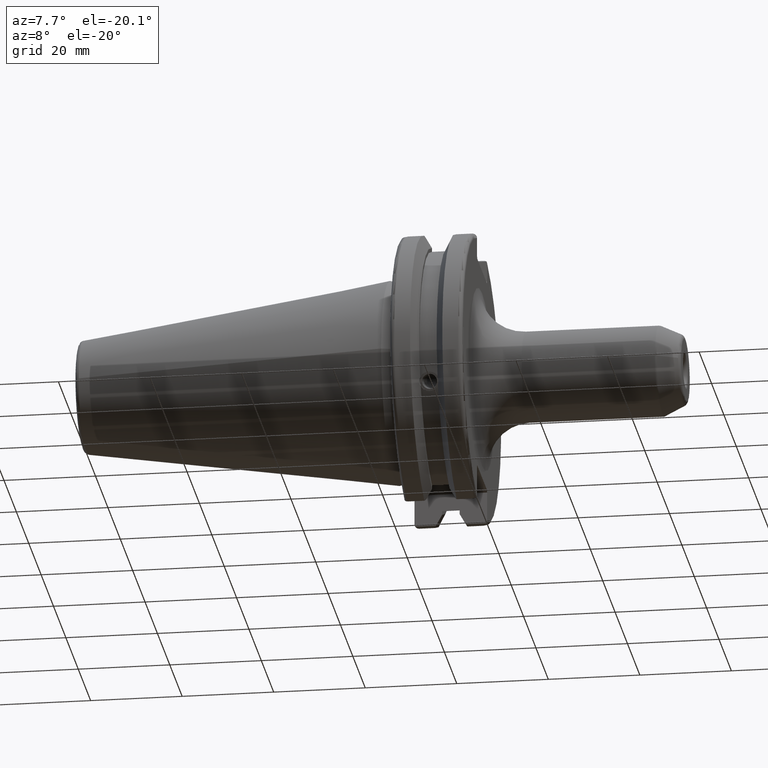
[diagram: clean part render]
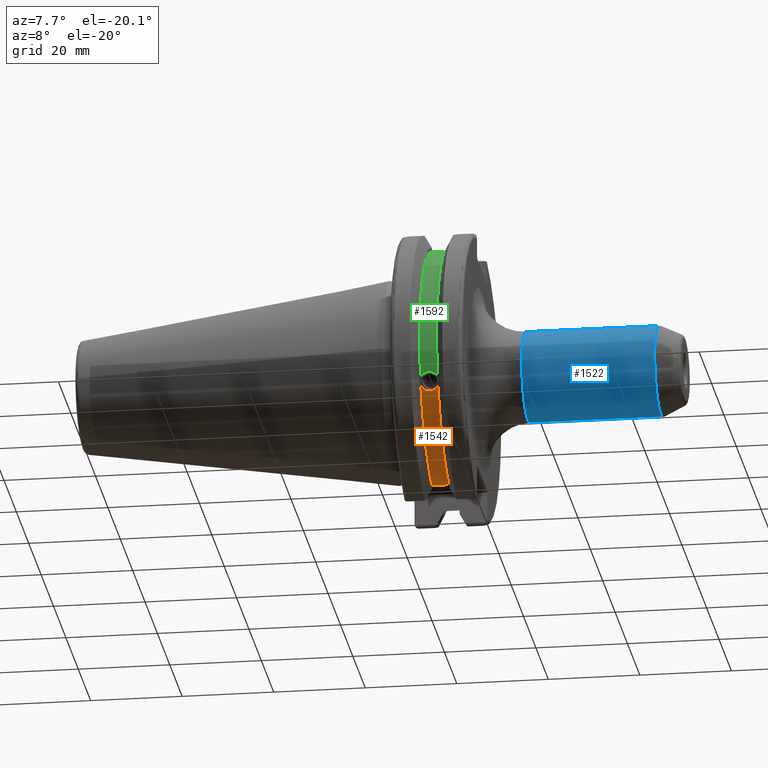
[diagram: same view with three faces highlighted in distinct colors, each labeled with its STEP entity id]
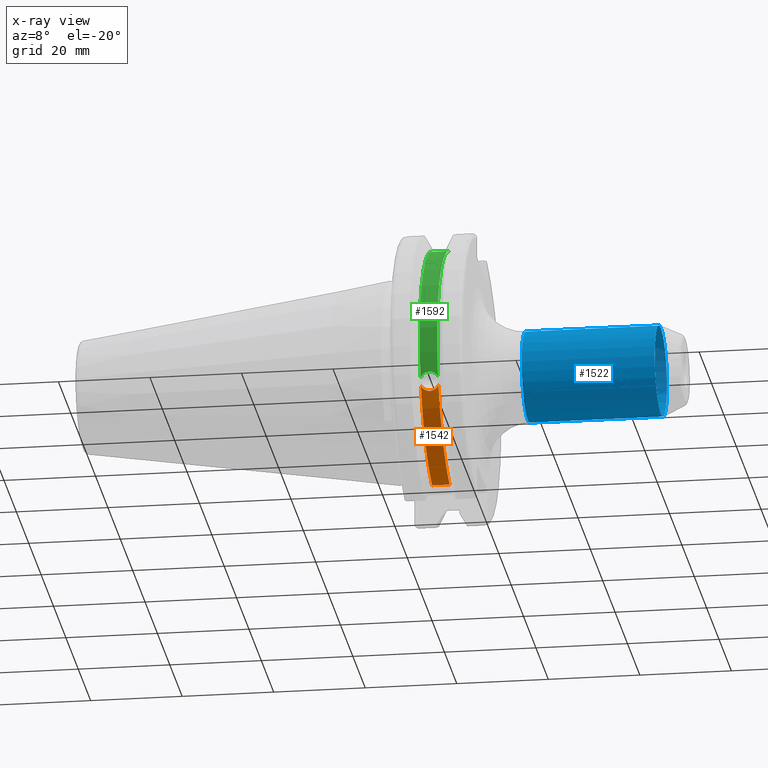
[diagram: x-ray of the same camera — body ghosted, the three highlighted faces saturated]
A machine part, auxiliary view with three faces highlighted in distinct colors.
The next image is the same camera in x-ray (body ghosted, the three faces saturated) — at least one of them is partly hidden behind the body in this view.
Their STEP definitions:

[orange] entity #1542 — the highlighted cylindrical surface (partial cylindrical patch) has radius 28.15 mm, axis along (1, 0, 0).
#74=B_SPLINE_CURVE_WITH_KNOTS('',3,(#2594,#2595,#2596,#2597,#2598,#2599,
#2600,#2601,#2602,#2603,#2604,#2605,#2606,#2607,#2608),.UNSPECIFIED.,.F.,
 .F.,(4,2,2,3,2,2,4),(-0.231446873660085,-0.158271583089134,-0.0791357915445672,
0.,0.0791357915445671,0.158271583089134,0.231446873660466),
 .UNSPECIFIED.);
#128=LINE('',#2666,#222);
#222=VECTOR('',#1985,10.);
#296=CYLINDRICAL_SURFACE('',#1696,28.15);
#390=FACE_OUTER_BOUND('',#485,.T.);
#485=EDGE_LOOP('',(#1182,#1183,#1184,#1185));
#588=CIRCLE('',#1695,28.15);
#589=CIRCLE('',#1697,28.15);
#685=VERTEX_POINT('',#2591);
#686=VERTEX_POINT('',#2593);
#699=VERTEX_POINT('',#2660);
#700=VERTEX_POINT('',#2664);
#861=EDGE_CURVE('',#686,#685,#74,.T.);
#879=EDGE_CURVE('',#686,#699,#588,.T.);
#881=EDGE_CURVE('',#685,#700,#589,.T.);
#882=EDGE_CURVE('',#700,#699,#128,.T.);
#1182=ORIENTED_EDGE('',*,*,#861,.T.);
#1183=ORIENTED_EDGE('',*,*,#881,.T.);
#1184=ORIENTED_EDGE('',*,*,#882,.T.);
#1185=ORIENTED_EDGE('',*,*,#879,.F.);
#1542=ADVANCED_FACE('',(#390),#296,.T.);
#1695=AXIS2_PLACEMENT_3D('',#2661,#1978,#1979);
#1696=AXIS2_PLACEMENT_3D('',#2663,#1981,#1982);
#1697=AXIS2_PLACEMENT_3D('',#2665,#1983,#1984);
#1978=DIRECTION('center_axis',(1.,0.,0.));
#1979=DIRECTION('ref_axis',(0.,0.,-1.));
#1981=DIRECTION('center_axis',(1.,0.,0.));
#1982=DIRECTION('ref_axis',(0.,1.,0.));
#1983=DIRECTION('center_axis',(1.,0.,0.));
#1984=DIRECTION('ref_axis',(0.,0.,-1.));
#1985=DIRECTION('',(1.,0.,0.));
#2591=CARTESIAN_POINT('',(9.2191,-26.1451788594704,-10.4332220529567));
#2593=CARTESIAN_POINT('',(13.0491,-26.1451788594704,-10.4332220529567));
#2594=CARTESIAN_POINT('Ctrl Pts',(13.0491,-26.1451788594704,-10.4332220529567));
#2595=CARTESIAN_POINT('Ctrl Pts',(12.9428694290343,-26.0576536126147,-10.6525563316815));
#2596=CARTESIAN_POINT('Ctrl Pts',(12.791379862294,-25.9751489313128,-10.8509873904882));
#2597=CARTESIAN_POINT('Ctrl Pts',(12.4326293734259,-25.8346412777187,-11.1816210830117));
#2598=CARTESIAN_POINT('Ctrl Pts',(12.1965549887012,-25.7695111693635,-11.3298867884858));
#2599=CARTESIAN_POINT('Ctrl Pts',(11.6791874573612,-25.6822868299377,-11.5262389251846));
#2600=CARTESIAN_POINT('Ctrl Pts',(11.3978859718152,-25.6603958057616,-11.5743935949859));
#2601=CARTESIAN_POINT('Ctrl Pts',(11.1341,-25.6603958057616,-11.5743935949859));
#2602=CARTESIAN_POINT('Ctrl Pts',(10.8703140281848,-25.6603958057616,-11.5743935949859));
#2603=CARTESIAN_POINT('Ctrl Pts',(10.5890125426388,-25.6822868299377,-11.5262389251846));
#2604=CARTESIAN_POINT('Ctrl Pts',(10.0716450112988,-25.7695111693635,-11.3298867884858));
#2605=CARTESIAN_POINT('Ctrl Pts',(9.83557062657411,-25.8346412777187,-11.1816210830117));
#2606=CARTESIAN_POINT('Ctrl Pts',(9.4768201377051,-25.9751489313131,-10.8509873904873));
#2607=CARTESIAN_POINT('Ctrl Pts',(9.32533057097183,-26.0576536126096,-10.6525563316942));
#2608=CARTESIAN_POINT('Ctrl Pts',(9.2191,-26.1451788594704,-10.4332220529567));
#2660=CARTESIAN_POINT('',(13.0491,-8.19,-26.932255754021));
#2661=CARTESIAN_POINT('Origin',(13.0491,0.,0.));
#2663=CARTESIAN_POINT('Origin',(11.1341,0.,0.));
#2664=CARTESIAN_POINT('',(9.2191,-8.19,-26.932255754021));
#2665=CARTESIAN_POINT('Origin',(9.2191,0.,0.));
#2666=CARTESIAN_POINT('',(11.1341,-8.19,-26.932255754021));

[blue] entity #1522 — the highlighted cylindrical surface (bore or boss wall) has radius 9.906 mm, axis along (1, 0, 0).
#65=B_SPLINE_CURVE_WITH_KNOTS('',3,(#2358,#2359,#2360,#2361,#2362,#2363,
#2364,#2365,#2366,#2367,#2368,#2369,#2370,#2371,#2372,#2373,#2374,#2375),
 .UNSPECIFIED.,.F.,.F.,(4,2,2,2,2,2,2,2,4),(0.529072367438421,0.663907434953961,
0.798742502469502,0.928443618673172,1.05814473487684,1.18784585108051,1.31754696728418,
1.45238203479972,1.58721710231526),.UNSPECIFIED.);
#66=B_SPLINE_CURVE_WITH_KNOTS('',3,(#2376,#2377,#2378,#2379,#2380,#2381,
#2382,#2383,#2384,#2385,#2386,#2387,#2388,#2389,#2390,#2391,#2392,#2393,
#2394),.UNSPECIFIED.,.F.,.F.,(4,2,2,2,3,2,2,2,4),(1.58721710231526,1.7220521698308,
1.85688723734634,1.98658835355001,2.11628946975368,2.24599058595736,2.37569170216103,
2.51052676967657,2.64536183719211),.UNSPECIFIED.);
#99=LINE('',#2352,#193);
#193=VECTOR('',#1856,9.906);
#286=CYLINDRICAL_SURFACE('',#1647,9.906);
#315=FACE_BOUND('',#460,.T.);
#370=FACE_OUTER_BOUND('',#459,.T.);
#459=EDGE_LOOP('',(#1060,#1061,#1062,#1063,#1064,#1065));
#460=EDGE_LOOP('',(#1066,#1067));
#567=CIRCLE('',#1645,9.906);
#568=CIRCLE('',#1646,9.906);
#569=CIRCLE('',#1648,9.906);
#570=CIRCLE('',#1649,9.906);
#643=VERTEX_POINT('',#2345);
#644=VERTEX_POINT('',#2347);
#645=VERTEX_POINT('',#2351);
#646=VERTEX_POINT('',#2353);
#647=VERTEX_POINT('',#2356);
#648=VERTEX_POINT('',#2357);
#806=EDGE_CURVE('',#643,#644,#567,.T.);
#807=EDGE_CURVE('',#644,#643,#568,.T.);
#808=EDGE_CURVE('',#644,#645,#99,.T.);
#809=EDGE_CURVE('',#646,#645,#569,.T.);
#810=EDGE_CURVE('',#645,#646,#570,.T.);
#811=EDGE_CURVE('',#647,#648,#65,.T.);
#812=EDGE_CURVE('',#648,#647,#66,.T.);
#1060=ORIENTED_EDGE('',*,*,#807,.F.);
#1061=ORIENTED_EDGE('',*,*,#808,.T.);
#1062=ORIENTED_EDGE('',*,*,#809,.F.);
#1063=ORIENTED_EDGE('',*,*,#810,.F.);
#1064=ORIENTED_EDGE('',*,*,#808,.F.);
#1065=ORIENTED_EDGE('',*,*,#806,.F.);
#1066=ORIENTED_EDGE('',*,*,#811,.T.);
#1067=ORIENTED_EDGE('',*,*,#812,.T.);
#1522=ADVANCED_FACE('',(#370,#315),#286,.T.);
#1645=AXIS2_PLACEMENT_3D('',#2348,#1850,#1851);
#1646=AXIS2_PLACEMENT_3D('',#2349,#1852,#1853);
#1647=AXIS2_PLACEMENT_3D('',#2350,#1854,#1855);
#1648=AXIS2_PLACEMENT_3D('',#2354,#1857,#1858);
#1649=AXIS2_PLACEMENT_3D('',#2355,#1859,#1860);
#1850=DIRECTION('center_axis',(1.,0.,0.));
#1851=DIRECTION('ref_axis',(0.,-1.,1.83697019872103E-16));
#1852=DIRECTION('center_axis',(1.,0.,0.));
#1853=DIRECTION('ref_axis',(0.,-1.,1.83697019872103E-16));
#1854=DIRECTION('center_axis',(1.,0.,0.));
#1855=DIRECTION('ref_axis',(0.,1.,0.));
#1856=DIRECTION('',(-1.,0.,0.));
#1857=DIRECTION('center_axis',(-1.,0.,0.));
#1858=DIRECTION('ref_axis',(0.,-1.,-1.22464679914735E-16));
#1859=DIRECTION('center_axis',(-1.,0.,0.));
#1860=DIRECTION('ref_axis',(0.,-1.,-1.22464679914735E-16));
#2345=CARTESIAN_POINT('',(58.118621686611,-1.21313511923537E-15,9.906));
#2347=CARTESIAN_POINT('',(58.118621686611,-9.906,-1.21313511923537E-15));
#2348=CARTESIAN_POINT('Origin',(58.118621686611,0.,0.));
#2349=CARTESIAN_POINT('Origin',(58.118621686611,0.,0.));
#2350=CARTESIAN_POINT('Origin',(38.695158174627,0.,0.));
#2351=CARTESIAN_POINT('',(29.05,-9.906,-1.21313511923537E-15));
#2352=CARTESIAN_POINT('',(38.695158174627,-9.906,-1.21313511923537E-15));
#2353=CARTESIAN_POINT('',(29.05,-1.21313511923537E-15,-9.906));
#2354=CARTESIAN_POINT('Origin',(29.05,0.,0.));
#2355=CARTESIAN_POINT('Origin',(29.05,0.,0.));
#2356=CARTESIAN_POINT('',(52.05,9.906,0.));
#2357=CARTESIAN_POINT('',(44.55,9.906,0.));
#2358=CARTESIAN_POINT('Ctrl Pts',(52.05,9.906,-1.38777878078145E-15));
#2359=CARTESIAN_POINT('Ctrl Pts',(52.05,9.906,0.4494502250518));
#2360=CARTESIAN_POINT('Ctrl Pts',(51.9320448233003,9.87248944388633,0.914293160023826));
#2361=CARTESIAN_POINT('Ctrl Pts',(51.491792873787,9.76103690400476,1.73900425012002));
#2362=CARTESIAN_POINT('Ctrl Pts',(51.1703277651678,9.68503796084408,2.09957744918128));
#2363=CARTESIAN_POINT('Ctrl Pts',(50.4832179384077,9.55264449134434,2.63614138826279));
#2364=CARTESIAN_POINT('Ctrl Pts',(50.0730915749197,9.48647771909782,2.85632065330157));
#2365=CARTESIAN_POINT('Ctrl Pts',(49.1977221206165,9.39461398580354,3.14532245764261));
#2366=CARTESIAN_POINT('Ctrl Pts',(48.7323370540122,9.37008502803323,3.21408502803323));
#2367=CARTESIAN_POINT('Ctrl Pts',(47.8676629459878,9.37008502803323,3.21408502803323));
#2368=CARTESIAN_POINT('Ctrl Pts',(47.4022778793835,9.39461398580354,3.14532245764261));
#2369=CARTESIAN_POINT('Ctrl Pts',(46.5269084250803,9.48647771909782,2.85632065330157));
#2370=CARTESIAN_POINT('Ctrl Pts',(46.1167820615923,9.55264449134434,2.63614138826279));
#2371=CARTESIAN_POINT('Ctrl Pts',(45.4296722348322,9.68503796084408,2.09957744918128));
#2372=CARTESIAN_POINT('Ctrl Pts',(45.108207126213,9.76103690400476,1.73900425012002));
#2373=CARTESIAN_POINT('Ctrl Pts',(44.6679551766997,9.87248944388633,0.914293160023826));
#2374=CARTESIAN_POINT('Ctrl Pts',(44.55,9.906,0.449450225051803));
#2375=CARTESIAN_POINT('Ctrl Pts',(44.55,9.906,1.59594559789866E-15));
#2376=CARTESIAN_POINT('Ctrl Pts',(44.55,9.906,6.24500451351651E-16));
#2377=CARTESIAN_POINT('Ctrl Pts',(44.55,9.906,-0.4494502250518));
#2378=CARTESIAN_POINT('Ctrl Pts',(44.6679551766997,9.87248944388633,-0.914293160023825));
#2379=CARTESIAN_POINT('Ctrl Pts',(45.108207126213,9.76103690400476,-1.73900425012002));
#2380=CARTESIAN_POINT('Ctrl Pts',(45.4296722348322,9.68503796084408,-2.09957744918128));
#2381=CARTESIAN_POINT('Ctrl Pts',(46.1167820615923,9.55264449134434,-2.63614138826279));
#2382=CARTESIAN_POINT('Ctrl Pts',(46.5269084250803,9.48647771909782,-2.85632065330157));
#2383=CARTESIAN_POINT('Ctrl Pts',(47.4022778793835,9.39461398580354,-3.14532245764261));
#2384=CARTESIAN_POINT('Ctrl Pts',(47.8676629459878,9.37008502803323,-3.21408502803323));
#2385=CARTESIAN_POINT('Ctrl Pts',(48.3,9.37008502803323,-3.21408502803323));
#2386=CARTESIAN_POINT('Ctrl Pts',(48.7323370540122,9.37008502803323,-3.21408502803323));
#2387=CARTESIAN_POINT('Ctrl Pts',(49.1977221206165,9.39461398580354,-3.14532245764261));
#2388=CARTESIAN_POINT('Ctrl Pts',(50.0730915749197,9.48647771909782,-2.85632065330157));
#2389=CARTESIAN_POINT('Ctrl Pts',(50.4832179384077,9.55264449134434,-2.63614138826279));
#2390=CARTESIAN_POINT('Ctrl Pts',(51.1703277651678,9.68503796084408,-2.09957744918128));
#2391=CARTESIAN_POINT('Ctrl Pts',(51.491792873787,9.76103690400476,-1.73900425012002));
#2392=CARTESIAN_POINT('Ctrl Pts',(51.9320448233003,9.87248944388633,-0.914293160023826));
#2393=CARTESIAN_POINT('Ctrl Pts',(52.05,9.906,-0.449450225051801));
#2394=CARTESIAN_POINT('Ctrl Pts',(52.05,9.906,0.));

[green] entity #1592 — the highlighted cylindrical surface (partial cylindrical patch) has radius 28.15 mm, axis along (1, 0, 0).
#72=B_SPLINE_CURVE_WITH_KNOTS('',3,(#2560,#2561,#2562,#2563,#2564,#2565,
#2566,#2567,#2568,#2569,#2570,#2571,#2572,#2573),.UNSPECIFIED.,.F.,.F.,
(4,2,2,2,2,2,4),(0.401639126382404,0.474814416953736,0.553950208498303,
0.63308600004287,0.712221791587437,0.791357583132004,0.864532873703336),
 .UNSPECIFIED.);
#162=LINE('',#2964,#256);
#256=VECTOR('',#2123,10.);
#311=CYLINDRICAL_SURFACE('',#1791,28.15);
#440=FACE_OUTER_BOUND('',#541,.T.);
#541=EDGE_LOOP('',(#1454,#1455,#1456,#1457));
#625=CIRCLE('',#1792,28.15);
#626=CIRCLE('',#1793,28.15);
#681=VERTEX_POINT('',#2557);
#682=VERTEX_POINT('',#2559);
#763=VERTEX_POINT('',#2961);
#764=VERTEX_POINT('',#2963);
#857=EDGE_CURVE('',#682,#681,#72,.T.);
#968=EDGE_CURVE('',#764,#763,#162,.T.);
#1019=EDGE_CURVE('',#764,#681,#625,.T.);
#1020=EDGE_CURVE('',#763,#682,#626,.T.);
#1454=ORIENTED_EDGE('',*,*,#857,.T.);
#1455=ORIENTED_EDGE('',*,*,#1019,.F.);
#1456=ORIENTED_EDGE('',*,*,#968,.T.);
#1457=ORIENTED_EDGE('',*,*,#1020,.T.);
#1592=ADVANCED_FACE('',(#440),#311,.T.);
#1791=AXIS2_PLACEMENT_3D('',#3112,#2231,#2232);
#1792=AXIS2_PLACEMENT_3D('',#3113,#2233,#2234);
#1793=AXIS2_PLACEMENT_3D('',#3114,#2235,#2236);
#2123=DIRECTION('',(-1.,0.,0.));
#2231=DIRECTION('center_axis',(1.,0.,0.));
#2232=DIRECTION('ref_axis',(0.,-0.887654187951484,0.46051063246378));
#2233=DIRECTION('center_axis',(1.,0.,0.));
#2234=DIRECTION('ref_axis',(0.,0.,-1.));
#2235=DIRECTION('center_axis',(1.,0.,0.));
#2236=DIRECTION('ref_axis',(0.,0.,-1.));
#2557=CARTESIAN_POINT('',(13.0491,-26.734714844398,-8.81348524641211));
#2559=CARTESIAN_POINT('',(9.2191,-26.734714844398,-8.81348524641212));
#2560=CARTESIAN_POINT('Ctrl Pts',(9.2191,-26.734714844398,-8.81348524641212));
#2561=CARTESIAN_POINT('Ctrl Pts',(9.32533057097183,-26.8086519721597,-8.58920529678291));
#2562=CARTESIAN_POINT('Ctrl Pts',(9.47682013770509,-26.8729987454904,-8.38416529997369));
#2563=CARTESIAN_POINT('Ctrl Pts',(9.83557062657411,-26.9778908791383,-8.04056861831091));
#2564=CARTESIAN_POINT('Ctrl Pts',(10.0716450112988,-27.0233016799732,-7.88512567185902));
#2565=CARTESIAN_POINT('Ctrl Pts',(10.5890125426388,-27.0826966800569,-7.6786444840004));
#2566=CARTESIAN_POINT('Ctrl Pts',(10.8703140281848,-27.0968804077294,-7.62768458768512));
#2567=CARTESIAN_POINT('Ctrl Pts',(11.3978859718152,-27.0968804077294,-7.62768458768512));
#2568=CARTESIAN_POINT('Ctrl Pts',(11.6791874573612,-27.0826966800569,-7.6786444840004));
#2569=CARTESIAN_POINT('Ctrl Pts',(12.1965549887012,-27.0233016799732,-7.88512567185902));
#2570=CARTESIAN_POINT('Ctrl Pts',(12.4326293734259,-26.9778908791383,-8.04056861831091));
#2571=CARTESIAN_POINT('Ctrl Pts',(12.7913798622949,-26.8729987454904,-8.38416529997369));
#2572=CARTESIAN_POINT('Ctrl Pts',(12.9428694290282,-26.8086519721597,-8.58920529678291));
#2573=CARTESIAN_POINT('Ctrl Pts',(13.0491,-26.734714844398,-8.81348524641211));
#2961=CARTESIAN_POINT('',(9.2191,-8.19,26.932255754021));
#2963=CARTESIAN_POINT('',(13.0491,-8.19,26.932255754021));
#2964=CARTESIAN_POINT('',(11.1341,-8.19,26.932255754021));
#3112=CARTESIAN_POINT('Origin',(11.1341,0.,0.));
#3113=CARTESIAN_POINT('Origin',(13.0491,0.,0.));
#3114=CARTESIAN_POINT('Origin',(9.2191,0.,0.));